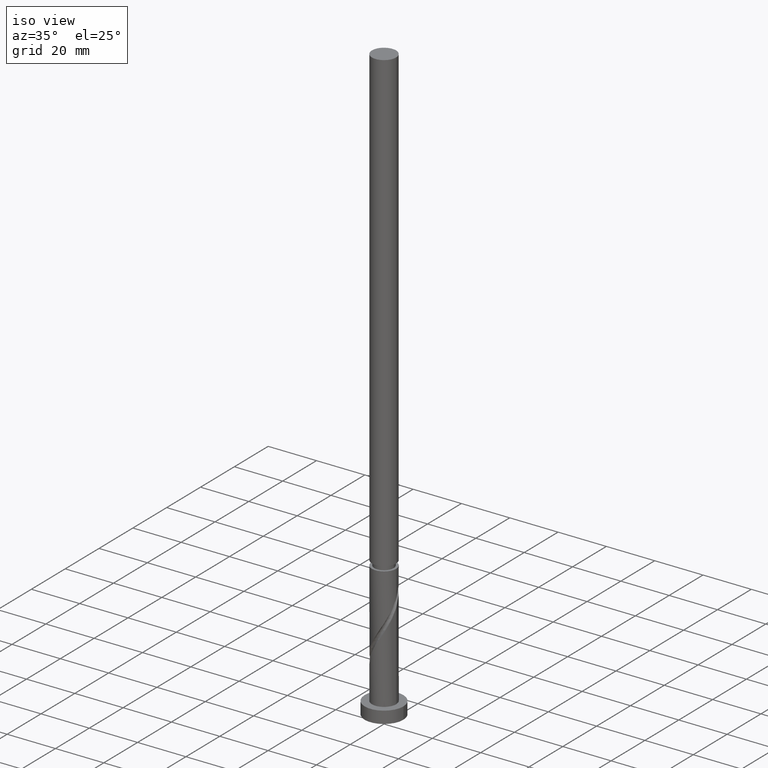
[diagram: clean part render]
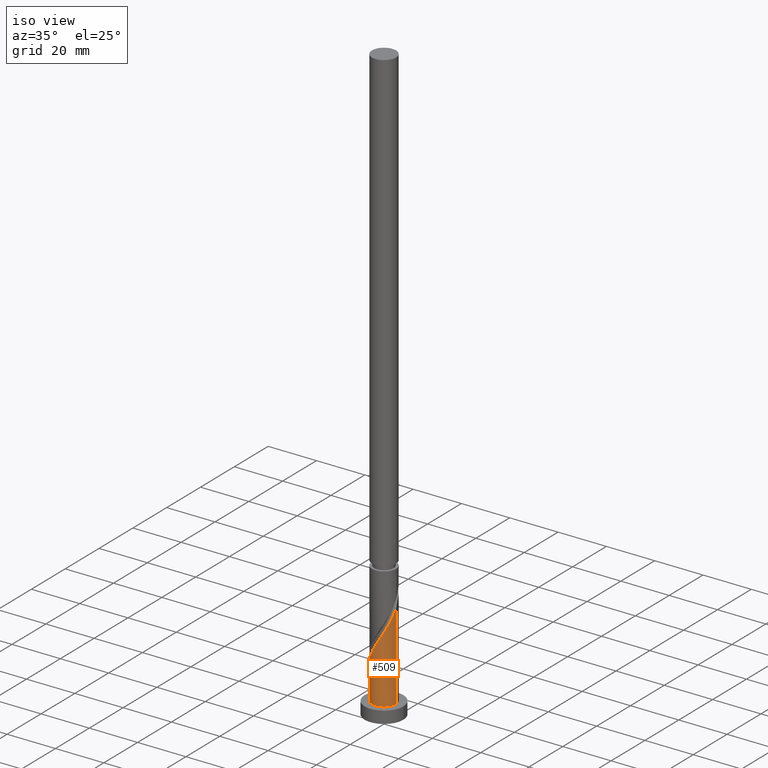
[diagram: same view with one face highlighted and labeled with its STEP entity id]
A machine part, iso view. The second image highlights one B-rep face of the part: STEP entity #509.
In plain terms, the highlighted cylindrical surface (edge-blend (fillet) strip) has radius 5 mm, axis along (-0, -0, -1).
Its self-contained STEP definition (entity closure, byte-faithful):
#125 = CARTESIAN_POINT ( 'NONE',  ( -4.555741235911176190, -2.060393601091441429, 18.17977849146339508 ) ) ;
#135 = AXIS2_PLACEMENT_3D ( 'NONE', #1410, #893, #1204 ) ;
#236 = CARTESIAN_POINT ( 'NONE',  ( -3.210609744079816696, -3.833012532097930691, 21.92977849146339864 ) ) ;
#262 = CARTESIAN_POINT ( 'NONE',  ( -4.787891840297525903, -1.547084842617163281, 17.24227849146339508 ) ) ;
#401 = CARTESIAN_POINT ( 'NONE',  ( 4.998552303470707336, -0.1203115516804431073, 40.67977849146337377 ) ) ;
#414 = CARTESIAN_POINT ( 'NONE',  ( 5.000000000000000000, 6.123233995736766282E-16, 247.0000000000000000 ) ) ;
#415 = VERTEX_POINT ( 'NONE', #680 ) ;
#430 = CARTESIAN_POINT ( 'NONE',  ( 2.060393601091440985, -4.555741235911176190, 31.30477849146339508 ) ) ;
#445 = ORIENTED_EDGE ( 'NONE', *, *, #574, .T. ) ;
#509 = ADVANCED_FACE ( 'NONE', ( #2011 ), #2054, .T. ) ;
#555 = CARTESIAN_POINT ( 'NONE',  ( 0.4428900315960737077, -5.012108159702484578, 28.49227849146339864 ) ) ;
#567 = CARTESIAN_POINT ( 'NONE',  ( 4.846456322308676512, -1.229577616888958502, 38.80477849146338798 ) ) ;
#574 = EDGE_CURVE ( 'NONE', #415, #1396, #1614, .T. ) ;
#579 = DIRECTION ( 'NONE',  ( -0.000000000000000000, -0.000000000000000000, -1.000000000000000000 ) ) ;
#580 = CARTESIAN_POINT ( 'NONE',  ( -4.323590631524827366, -2.573702359565718911, 19.11727849146339153 ) ) ;
#607 = CARTESIAN_POINT ( 'NONE',  ( -0.6835131349569593118, -4.984996447238927431, 26.61727849146339508 ) ) ;
#629 = LINE ( 'NONE', #414, #774 ) ;
#641 = DIRECTION ( 'NONE',  ( -0.000000000000000000, -0.000000000000000000, -1.000000000000000000 ) ) ;
#674 = ORIENTED_EDGE ( 'NONE', *, *, #2048, .F. ) ;
#680 = CARTESIAN_POINT ( 'NONE',  ( -5.000000000000000000, 0.000000000000000000, 5.000000000000000000 ) ) ;
#711 = CARTESIAN_POINT ( 'NONE',  ( 5.000000000000000000, 6.123233995736766282E-16, 5.000000000000000000 ) ) ;
#725 = CARTESIAN_POINT ( 'NONE',  ( 2.573702359565718911, -4.323590631524827366, 32.24227849146338798 ) ) ;
#735 = CARTESIAN_POINT ( 'NONE',  ( 4.707916197378421153, -1.775642098820956694, 37.86727849146340930 ) ) ;
#741 = DIRECTION ( 'NONE',  ( -0.000000000000000000, -0.000000000000000000, -1.000000000000000000 ) ) ;
#747 = CARTESIAN_POINT ( 'NONE',  ( -5.000000000000002665, -0.5025189076296108226, 15.46853249252095353 ) ) ;
#764 = CARTESIAN_POINT ( 'NONE',  ( 0.000000000000000000, 0.000000000000000000, 247.0000000000000000 ) ) ;
#765 = CARTESIAN_POINT ( 'NONE',  ( 5.000000000000006217, 2.701565007396306944E-15, 40.88026141355734921 ) ) ;
#774 = VECTOR ( 'NONE', #741, 1000.000000000000000 ) ;
#776 = EDGE_CURVE ( 'NONE', #1919, #415, #1430, .T. ) ;
#893 = DIRECTION ( 'NONE',  ( 0.000000000000000000, 0.000000000000000000, 1.000000000000000000 ) ) ;
#904 = CARTESIAN_POINT ( 'NONE',  ( 4.984996447238926542, -0.6835131349569597559, 39.74227849146338087 ) ) ;
#917 = VERTEX_POINT ( 'NONE', #2075 ) ;
#921 = ORIENTED_EDGE ( 'NONE', *, *, #1584, .F. ) ;
#925 = CARTESIAN_POINT ( 'NONE',  ( -3.983038583135043442, -3.022483026463117284, 20.05477849146339864 ) ) ;
#953 = ORIENTED_EDGE ( 'NONE', *, *, #776, .T. ) ;
#1081 = CARTESIAN_POINT ( 'NONE',  ( 4.194761370835347947, -2.778732953414373430, 35.99227849146339508 ) ) ;
#1196 =( BOUNDED_CURVE ( )  B_SPLINE_CURVE ( 2, ( #1845, #747, #1729, #262, #125, #580, #925, #1205, #236, #1716, #1563, #1244, #1365, #607, #2055, #555, #2023, #1376, #430, #725, #2012, #1855, #1389, #1081, #1520, #735, #567, #904, #401, #1217, #765 ),
 .UNSPECIFIED., .F., .T. ) 
 B_SPLINE_CURVE_WITH_KNOTS ( ( 3, 2, 2, 2, 2, 2, 2, 2, 2, 2, 2, 2, 2, 2, 2, 3 ),
 ( 0.5545303401299221946, 0.5625000000000000000, 0.5714285714285713969, 0.5803571428571427937, 0.5892857142857143016, 0.5982142857142856984, 0.6071428571428572063, 0.6160714285714286031, 0.6250000000000000000, 0.6339285714285713969, 0.6428571428571427937, 0.6517857142857143016, 0.6607142857142856984, 0.6696428571428572063, 0.6785714285714286031, 0.6795303401299223056 ),
 .UNSPECIFIED. ) 
 CURVE ( )  GEOMETRIC_REPRESENTATION_ITEM ( )  RATIONAL_B_SPLINE_CURVE ( ( 0.9079949616361792097, 0.9039886423360427026, 0.9090909090909090606, 0.9033747362665842662, 0.9090909090909090606, 0.9033747362665842662, 0.9090909090909090606, 0.9033747362665842662, 0.9090909090909090606, 0.9033747362665842662, 0.9090909090909090606, 0.9033747362665842662, 0.9090909090909090606, 0.9033747362665842662, 0.9090909090909090606, 0.9033747362665842662, 0.9090909090909090606, 0.9033747362665842662, 0.9090909090909090606, 0.9033747362665842662, 0.9090909090909090606, 0.9033747362665842662, 0.9090909090909090606, 0.9033747362665842662, 0.9090909090909090606, 0.9033747362665842662, 0.9090909090909090606, 0.9033747362665842662, 0.9090909090909090606, 0.9084770030214507353, 0.9079949616361789877 ) ) 
 REPRESENTATION_ITEM ( '' )  );
#1204 = DIRECTION ( 'NONE',  ( 1.000000000000000000, 0.000000000000000000, 0.000000000000000000 ) ) ;
#1205 = CARTESIAN_POINT ( 'NONE',  ( -3.642486534745258187, -3.471263693360515212, 20.99227849146340219 ) ) ;
#1217 = CARTESIAN_POINT ( 'NONE',  ( 5.000000000000007105, -0.06016448583194197730, 40.77989872533227356 ) ) ;
#1244 = CARTESIAN_POINT ( 'NONE',  ( -1.775642098820956694, -4.707916197378421153, 24.74227849146338798 ) ) ;
#1365 = CARTESIAN_POINT ( 'NONE',  ( -1.229577616888958280, -4.846456322308673847, 25.67977849146339864 ) ) ;
#1374 = AXIS2_PLACEMENT_3D ( 'NONE', #764, #579, #1715 ) ;
#1376 = CARTESIAN_POINT ( 'NONE',  ( 1.547084842617163281, -4.787891840297525903, 30.36727849146339508 ) ) ;
#1389 = CARTESIAN_POINT ( 'NONE',  ( 3.833012532097930691, -3.210609744079816696, 35.05477849146340930 ) ) ;
#1395 = CARTESIAN_POINT ( 'NONE',  ( -5.000000000000006217, -3.306058835018132103E-15, 14.63026141355735632 ) ) ;
#1396 = VERTEX_POINT ( 'NONE', #711 ) ;
#1410 = CARTESIAN_POINT ( 'NONE',  ( 0.000000000000000000, 0.000000000000000000, 5.000000000000000000 ) ) ;
#1430 = LINE ( 'NONE', #1940, #1924 ) ;
#1493 = EDGE_LOOP ( 'NONE', ( #921, #674, #953, #445 ) ) ;
#1520 = CARTESIAN_POINT ( 'NONE',  ( 4.451338784106884994, -2.277187526117665062, 36.92977849146339508 ) ) ;
#1563 = CARTESIAN_POINT ( 'NONE',  ( -2.277187526117665062, -4.451338784106884994, 23.80477849146339508 ) ) ;
#1584 = EDGE_CURVE ( 'NONE', #917, #1396, #629, .T. ) ;
#1614 = CIRCLE ( 'NONE', #135, 5.000000000000000000 ) ;
#1715 = DIRECTION ( 'NONE',  ( -1.000000000000000000, 0.000000000000000000, 0.000000000000000000 ) ) ;
#1716 = CARTESIAN_POINT ( 'NONE',  ( -2.778732953414372986, -4.194761370835347947, 22.86727849146339153 ) ) ;
#1729 = CARTESIAN_POINT ( 'NONE',  ( -4.900000000000005684, -0.9949874371066188550, 16.30477849146339508 ) ) ;
#1845 = CARTESIAN_POINT ( 'NONE',  ( -5.000000000000006217, -3.306058835018131708E-15, 14.63026141355735632 ) ) ;
#1855 = CARTESIAN_POINT ( 'NONE',  ( 3.471263693360515212, -3.642486534745258187, 34.11727849146339508 ) ) ;
#1919 = VERTEX_POINT ( 'NONE', #1395 ) ;
#1924 = VECTOR ( 'NONE', #641, 1000.000000000000000 ) ;
#1940 = CARTESIAN_POINT ( 'NONE',  ( -5.000000000000000000, 0.000000000000000000, 247.0000000000000000 ) ) ;
#2011 = FACE_OUTER_BOUND ( 'NONE', #1493, .T. ) ;
#2012 = CARTESIAN_POINT ( 'NONE',  ( 3.022483026463117284, -3.983038583135043442, 33.17977849146339508 ) ) ;
#2023 = CARTESIAN_POINT ( 'NONE',  ( 0.9949874371066184109, -4.900000000000005684, 29.42977849146339864 ) ) ;
#2048 = EDGE_CURVE ( 'NONE', #1919, #917, #1196, .T. ) ;
#2054 = CYLINDRICAL_SURFACE ( 'NONE', #1374, 5.000000000000000000 ) ;
#2055 = CARTESIAN_POINT ( 'NONE',  ( -0.1203115516804426355, -4.998552303470707336, 27.55477849146339864 ) ) ;
#2075 = CARTESIAN_POINT ( 'NONE',  ( 5.000000000000006217, 2.701565007396306944E-15, 40.88026141355734921 ) ) ;